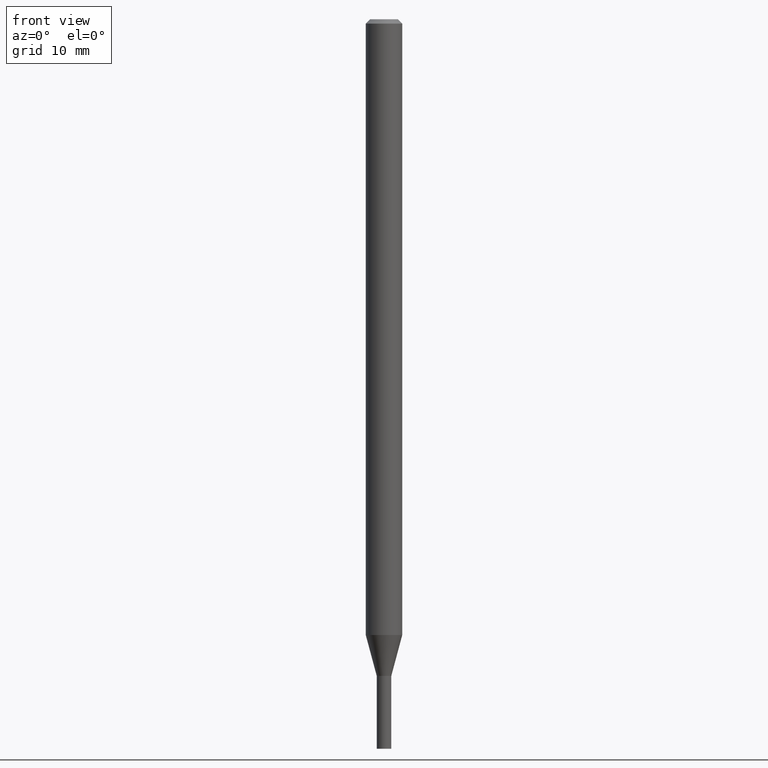
[diagram: clean part render]
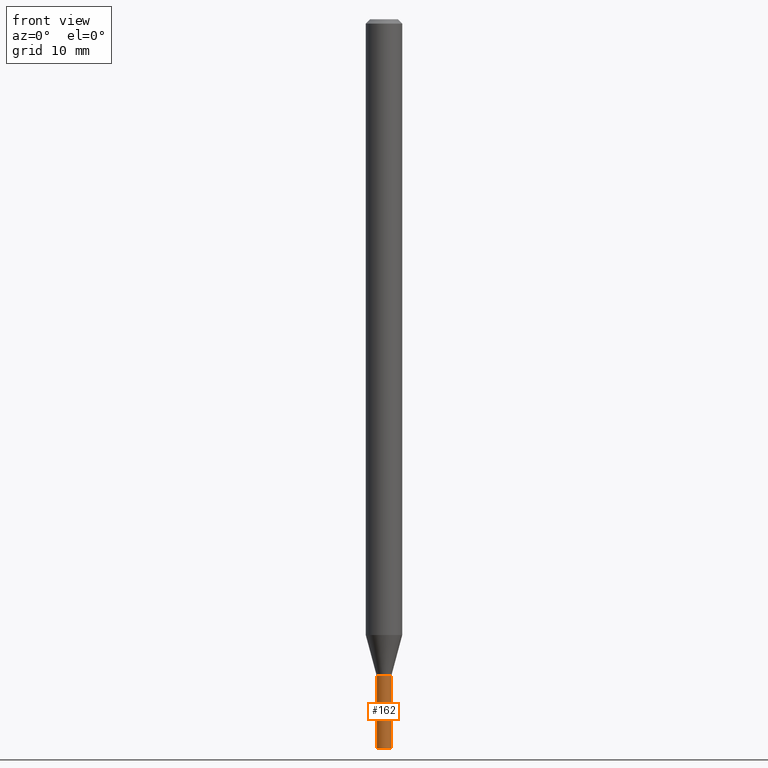
[diagram: same view with one face highlighted and labeled with its STEP entity id]
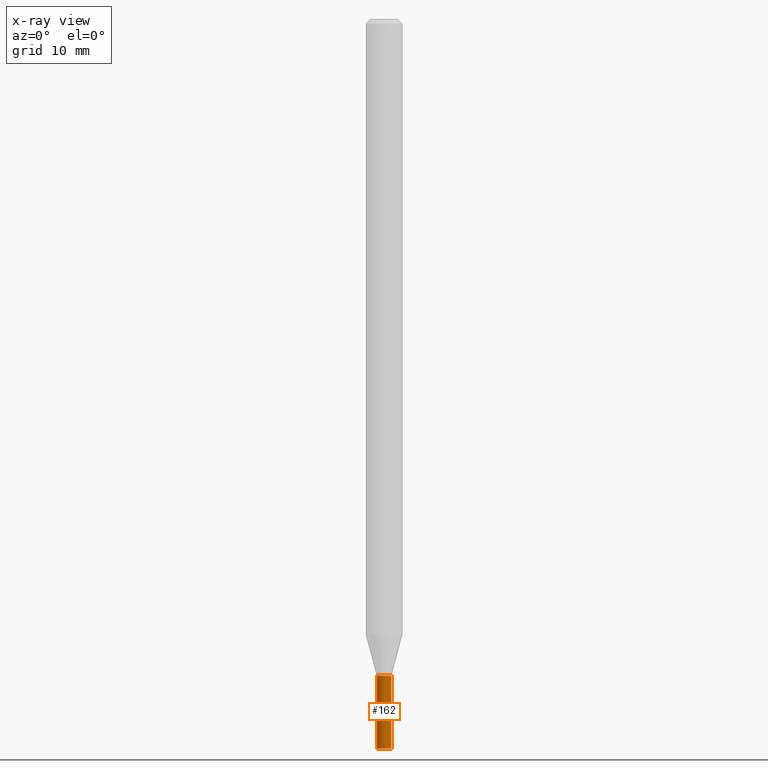
[diagram: x-ray of the same camera — body ghosted, the highlighted face saturated]
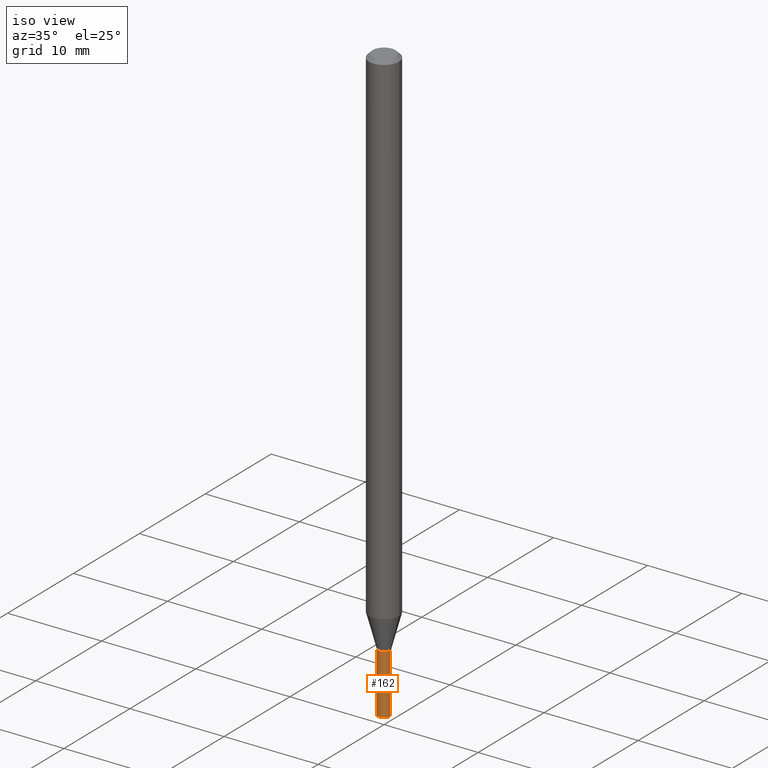
[diagram: same view with one face highlighted and labeled with its STEP entity id]
A machine part, front view. The second image highlights one B-rep face of the part: STEP entity #162.
The next image is the same camera in x-ray: the body ghosted, the highlighted face saturated — about 0% of this face is hidden behind the body in this view.
A second angle (iso view) of the same face is appended — the face is thin or edge-on in the first view.
In plain terms, the highlighted cylindrical surface (edge-blend (fillet) strip) has radius 0.635 mm, axis along (-0, 0, 1).
Its self-contained STEP definition (entity closure, byte-faithful):
#20 = EDGE_CURVE ( 'NONE', #242, #369, #213, .T. ) ;
#53 = FACE_OUTER_BOUND ( 'NONE', #164, .T. ) ;
#67 = DIRECTION ( 'NONE',  ( 1.000000000000000000, -6.982962677686254878E-15, 0.000000000000000000 ) ) ;
#70 = AXIS2_PLACEMENT_3D ( 'NONE', #244, #284, #67 ) ;
#86 = EDGE_CURVE ( 'NONE', #369, #115, #127, .T. ) ;
#89 = DIRECTION ( 'NONE',  ( -2.445468806185136877E-29, 3.491481338843145188E-15, 1.000000000000000000 ) ) ;
#92 = VECTOR ( 'NONE', #291, 39.37007874015748143 ) ;
#100 = AXIS2_PLACEMENT_3D ( 'NONE', #341, #158, #307 ) ;
#103 = CARTESIAN_POINT ( 'NONE',  ( -0.02500000000000000139, 1.776356839400250563E-16, -1.229733772563726656E-30 ) ) ;
#115 = VERTEX_POINT ( 'NONE', #439 ) ;
#126 = CARTESIAN_POINT ( 'NONE',  ( 0.02500000000000000139, -1.745740669421566924E-16, 1.219044193948984123E-30 ) ) ;
#127 = LINE ( 'NONE', #126, #428 ) ;
#133 = CARTESIAN_POINT ( 'NONE',  ( -0.02500000000000000139, -8.114632495812445702E-15, -2.250000000000000000 ) ) ;
#136 = LINE ( 'NONE', #103, #92 ) ;
#158 = DIRECTION ( 'NONE',  ( -2.445468806185136597E-29, 3.491481338843145583E-15, 1.000000000000000000 ) ) ;
#162 = ADVANCED_FACE ( 'NONE', ( #53 ), #195, .T. ) ;
#164 = EDGE_LOOP ( 'NONE', ( #282, #308, #380, #208 ) ) ;
#165 = CARTESIAN_POINT ( 'NONE',  ( -0.02500000000000000139, -8.114632495812445702E-15, -2.500000000000000000 ) ) ;
#188 = DIRECTION ( 'NONE',  ( 1.000000000000000000, -6.982962677686254878E-15, 0.000000000000000000 ) ) ;
#195 = CYLINDRICAL_SURFACE ( 'NONE', #100, 0.02500000000000000139 ) ;
#198 = DIRECTION ( 'NONE',  ( -2.445468806185136597E-29, 3.491481338843145583E-15, 1.000000000000000000 ) ) ;
#208 = ORIENTED_EDGE ( 'NONE', *, *, #277, .F. ) ;
#213 = CIRCLE ( 'NONE', #422, 0.02500000000000000139 ) ;
#238 = CIRCLE ( 'NONE', #70, 0.02500000000000000139 ) ;
#242 = VERTEX_POINT ( 'NONE', #165 ) ;
#244 = CARTESIAN_POINT ( 'NONE',  ( 5.502304813916557343E-29, -7.855833012397078448E-15, -2.250000000000000000 ) ) ;
#270 = CARTESIAN_POINT ( 'NONE',  ( 0.02500000000000000139, -8.903277414050021610E-15, -2.500000000000000000 ) ) ;
#277 = EDGE_CURVE ( 'NONE', #375, #115, #238, .T. ) ;
#282 = ORIENTED_EDGE ( 'NONE', *, *, #406, .F. ) ;
#284 = DIRECTION ( 'NONE',  ( -2.445468806185136597E-29, 3.491481338843145583E-15, 1.000000000000000000 ) ) ;
#291 = DIRECTION ( 'NONE',  ( -2.445468806185136877E-29, 3.491481338843145188E-15, 1.000000000000000000 ) ) ;
#307 = DIRECTION ( 'NONE',  ( 1.000000000000000000, -6.982962677686267499E-15, 4.876176775795936353E-29 ) ) ;
#308 = ORIENTED_EDGE ( 'NONE', *, *, #20, .T. ) ;
#341 = CARTESIAN_POINT ( 'NONE',  ( 0.000000000000000000, 0.000000000000000000, 0.000000000000000000 ) ) ;
#367 = CARTESIAN_POINT ( 'NONE',  ( 6.113672015462842613E-29, -8.728703347107864943E-15, -2.500000000000000000 ) ) ;
#369 = VERTEX_POINT ( 'NONE', #270 ) ;
#375 = VERTEX_POINT ( 'NONE', #133 ) ;
#380 = ORIENTED_EDGE ( 'NONE', *, *, #86, .T. ) ;
#406 = EDGE_CURVE ( 'NONE', #242, #375, #136, .T. ) ;
#422 = AXIS2_PLACEMENT_3D ( 'NONE', #367, #198, #188 ) ;
#428 = VECTOR ( 'NONE', #89, 39.37007874015748143 ) ;
#439 = CARTESIAN_POINT ( 'NONE',  ( 0.02500000000000000139, -8.030407079339233538E-15, -2.250000000000000000 ) ) ;